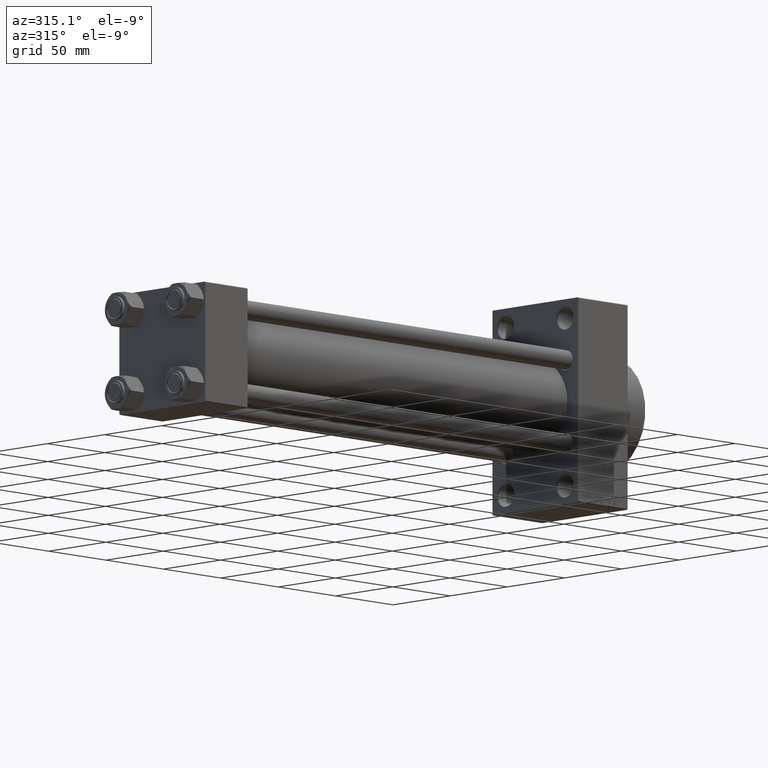
[diagram: clean part render]
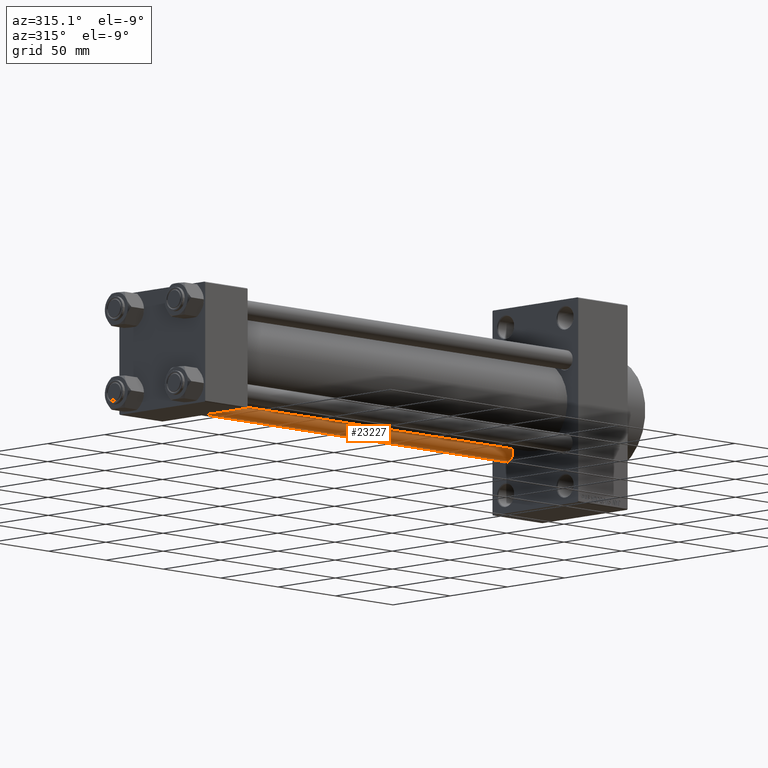
[diagram: same view with one face highlighted and labeled with its STEP entity id]
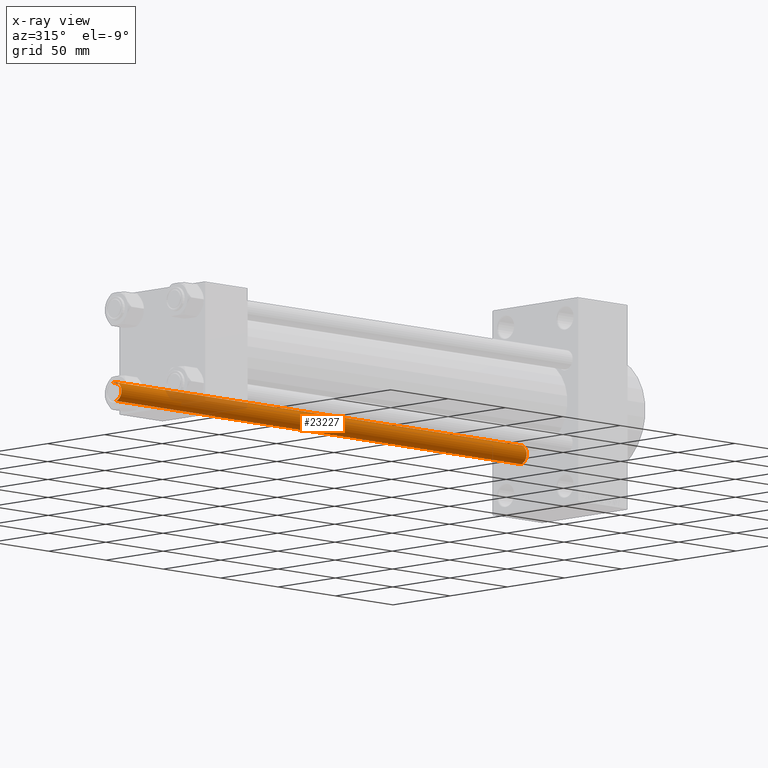
[diagram: x-ray of the same camera — body ghosted, the highlighted face saturated]
A machine part, auxiliary view. The second image highlights one B-rep face of the part: STEP entity #23227.
The next image is the same camera in x-ray: the body ghosted, the highlighted face saturated — about 15% of this face is hidden behind the body in this view.
In plain terms, the highlighted cylindrical surface (edge-blend (fillet) strip) has radius 6 mm, axis along (1, -0, 0).
Its self-contained STEP definition (entity closure, byte-faithful):
#1926 = DIRECTION ( 'NONE',  ( -0.000000000000000000, -0.000000000000000000, -1.000000000000000000 ) ) ;
#4134 = CARTESIAN_POINT ( 'NONE',  ( 0.000000000000000000, 0.000000000000000000, 354.0000000000000000 ) ) ;
#4387 = DIRECTION ( 'NONE',  ( -1.000000000000000000, 0.000000000000000000, 0.000000000000000000 ) ) ;
#4592 = ORIENTED_EDGE ( 'NONE', *, *, #38697, .F. ) ;
#5443 = AXIS2_PLACEMENT_3D ( 'NONE', #11094, #40428, #14598 ) ;
#5723 = ORIENTED_EDGE ( 'NONE', *, *, #43860, .T. ) ;
#8532 = AXIS2_PLACEMENT_3D ( 'NONE', #38113, #26579, #42099 ) ;
#8904 = VECTOR ( 'NONE', #48454, 1000.000000000000000 ) ;
#10939 = CARTESIAN_POINT ( 'NONE',  ( 6.000000000000000888, 7.347880794884120722E-16, 353.5000000000000000 ) ) ;
#11094 = CARTESIAN_POINT ( 'NONE',  ( 0.000000000000000000, 0.000000000000000000, 353.5000000000000000 ) ) ;
#11634 = AXIS2_PLACEMENT_3D ( 'NONE', #4134, #14901, #4387 ) ;
#12624 = CIRCLE ( 'NONE', #5443, 6.000000000000000888 ) ;
#14325 = ORIENTED_EDGE ( 'NONE', *, *, #22039, .T. ) ;
#14598 = DIRECTION ( 'NONE',  ( 1.000000000000000000, 0.000000000000000000, 0.000000000000000000 ) ) ;
#14901 = DIRECTION ( 'NONE',  ( -0.000000000000000000, -0.000000000000000000, -1.000000000000000000 ) ) ;
#14969 = CARTESIAN_POINT ( 'NONE',  ( 6.000000000000000888, 7.347880794884120722E-16, 0.5000000000000559552 ) ) ;
#15495 = VERTEX_POINT ( 'NONE', #24533 ) ;
#18855 = VERTEX_POINT ( 'NONE', #29385 ) ;
#18882 = EDGE_LOOP ( 'NONE', ( #4592, #43720, #5723, #14325 ) ) ;
#22039 = EDGE_CURVE ( 'NONE', #18855, #32185, #27732, .T. ) ;
#23227 = ADVANCED_FACE ( 'NONE', ( #30695 ), #45474, .T. ) ;
#23328 = VECTOR ( 'NONE', #1926, 1000.000000000000000 ) ;
#24533 = CARTESIAN_POINT ( 'NONE',  ( -6.000000000000000888, 0.000000000000000000, 353.5000000000000000 ) ) ;
#26579 = DIRECTION ( 'NONE',  ( -0.000000000000000000, -0.000000000000000000, 1.000000000000000000 ) ) ;
#27732 = CIRCLE ( 'NONE', #8532, 6.000000000000000888 ) ;
#29385 = CARTESIAN_POINT ( 'NONE',  ( -6.000000000000000888, 0.000000000000000000, 0.5000000000000559552 ) ) ;
#30695 = FACE_OUTER_BOUND ( 'NONE', #18882, .T. ) ;
#31383 = EDGE_CURVE ( 'NONE', #38448, #15495, #12624, .T. ) ;
#32185 = VERTEX_POINT ( 'NONE', #14969 ) ;
#35987 = CARTESIAN_POINT ( 'NONE',  ( -6.000000000000000888, 0.000000000000000000, 354.0000000000000000 ) ) ;
#36963 = LINE ( 'NONE', #40948, #8904 ) ;
#38113 = CARTESIAN_POINT ( 'NONE',  ( 0.000000000000000000, 0.000000000000000000, 0.5000000000000559552 ) ) ;
#38448 = VERTEX_POINT ( 'NONE', #10939 ) ;
#38697 = EDGE_CURVE ( 'NONE', #38448, #32185, #36963, .T. ) ;
#40428 = DIRECTION ( 'NONE',  ( 0.000000000000000000, 0.000000000000000000, -1.000000000000000000 ) ) ;
#40948 = CARTESIAN_POINT ( 'NONE',  ( 6.000000000000000888, 7.347880794884120722E-16, 354.0000000000000000 ) ) ;
#42099 = DIRECTION ( 'NONE',  ( 1.000000000000000000, 0.000000000000000000, 0.000000000000000000 ) ) ;
#43720 = ORIENTED_EDGE ( 'NONE', *, *, #31383, .T. ) ;
#43860 = EDGE_CURVE ( 'NONE', #15495, #18855, #47001, .T. ) ;
#45474 = CYLINDRICAL_SURFACE ( 'NONE', #11634, 6.000000000000000888 ) ;
#47001 = LINE ( 'NONE', #35987, #23328 ) ;
#48454 = DIRECTION ( 'NONE',  ( -0.000000000000000000, -0.000000000000000000, -1.000000000000000000 ) ) ;